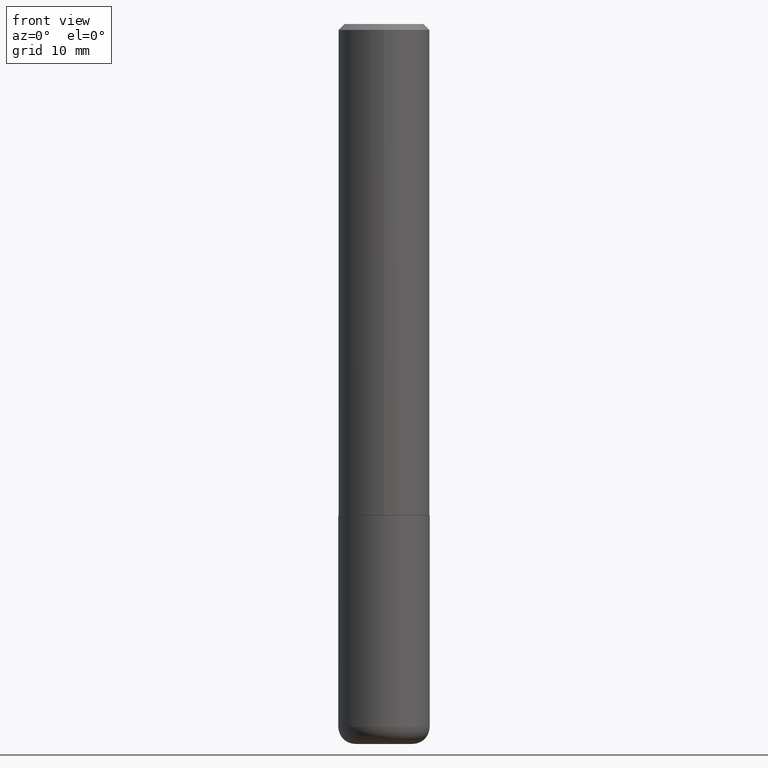
[diagram: clean part render]
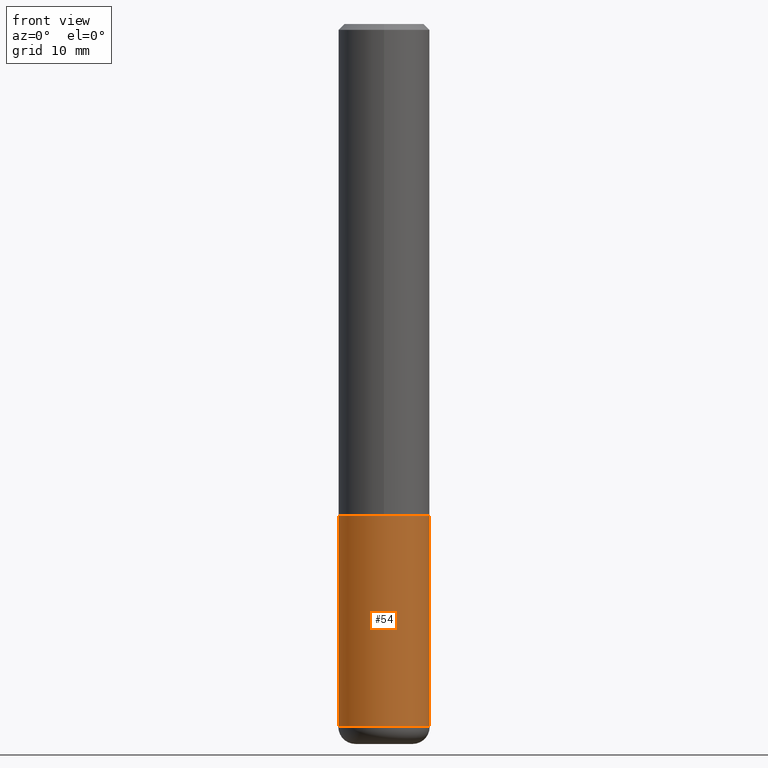
[diagram: same view with one face highlighted and labeled with its STEP entity id]
A machine part, front view. The second image highlights one B-rep face of the part: STEP entity #54.
In plain terms, the highlighted cylindrical surface (partial cylindrical patch) has radius 4.0005 mm, axis along (-0, 0, 1).
Its self-contained STEP definition (entity closure, byte-faithful):
#17 = DIRECTION ( 'NONE',  ( 1.000000000000000000, -6.982962677686267499E-15, 0.000000000000000000 ) ) ;
#25 = VERTEX_POINT ( 'NONE', #342 ) ;
#26 = VERTEX_POINT ( 'NONE', #352 ) ;
#30 = AXIS2_PLACEMENT_3D ( 'NONE', #288, #390, #386 ) ;
#49 = EDGE_CURVE ( 'NONE', #169, #25, #275, .T. ) ;
#52 = ORIENTED_EDGE ( 'NONE', *, *, #345, .T. ) ;
#54 = ADVANCED_FACE ( 'NONE', ( #100 ), #73, .T. ) ;
#73 = CYLINDRICAL_SURFACE ( 'NONE', #173, 0.1575000000000000289 ) ;
#75 = VECTOR ( 'NONE', #300, 39.37007874015748143 ) ;
#87 = LINE ( 'NONE', #276, #75 ) ;
#100 = FACE_OUTER_BOUND ( 'NONE', #114, .T. ) ;
#114 = EDGE_LOOP ( 'NONE', ( #201, #52, #189, #347 ) ) ;
#122 = AXIS2_PLACEMENT_3D ( 'NONE', #407, #304, #17 ) ;
#129 = DIRECTION ( 'NONE',  ( 1.000000000000000000, -6.982962677686267499E-15, 4.876176775795935232E-29 ) ) ;
#149 = VERTEX_POINT ( 'NONE', #265 ) ;
#160 = DIRECTION ( 'NONE',  ( -2.445468806185136597E-29, 3.491481338843145583E-15, 1.000000000000000000 ) ) ;
#169 = VERTEX_POINT ( 'NONE', #295 ) ;
#173 = AXIS2_PLACEMENT_3D ( 'NONE', #191, #160, #129 ) ;
#189 = ORIENTED_EDGE ( 'NONE', *, *, #313, .T. ) ;
#191 = CARTESIAN_POINT ( 'NONE',  ( 0.000000000000000000, 0.000000000000000000, 0.000000000000000000 ) ) ;
#201 = ORIENTED_EDGE ( 'NONE', *, *, #212, .F. ) ;
#212 = EDGE_CURVE ( 'NONE', #149, #169, #292, .T. ) ;
#233 = DIRECTION ( 'NONE',  ( -2.445468806185136877E-29, 3.491481338843145188E-15, 1.000000000000000000 ) ) ;
#261 = CARTESIAN_POINT ( 'NONE',  ( -0.1575000000000000289, 1.119104808822157998E-15, -7.747322767151478386E-30 ) ) ;
#265 = CARTESIAN_POINT ( 'NONE',  ( -0.1575000000000000011, -7.334469808784867333E-15, -2.421200000000000241 ) ) ;
#275 = CIRCLE ( 'NONE', #30, 0.1575000000000000011 ) ;
#276 = CARTESIAN_POINT ( 'NONE',  ( 0.1575000000000000289, -1.099816621735587283E-15, 7.679978421878599434E-30 ) ) ;
#288 = CARTESIAN_POINT ( 'NONE',  ( 4.139934141990818918E-29, -5.910728758527562653E-15, -1.692900000000000293 ) ) ;
#292 = LINE ( 'NONE', #261, #326 ) ;
#295 = CARTESIAN_POINT ( 'NONE',  ( -0.1575000000000000011, -6.063046879245136191E-15, -1.692900000000000293 ) ) ;
#298 = CIRCLE ( 'NONE', #122, 0.1575000000000000289 ) ;
#300 = DIRECTION ( 'NONE',  ( -2.445468806185136877E-29, 3.491481338843145188E-15, 1.000000000000000000 ) ) ;
#304 = DIRECTION ( 'NONE',  ( -2.445468806185136597E-29, 3.491481338843145583E-15, 1.000000000000000000 ) ) ;
#313 = EDGE_CURVE ( 'NONE', #26, #25, #87, .T. ) ;
#326 = VECTOR ( 'NONE', #233, 39.37007874015748143 ) ;
#342 = CARTESIAN_POINT ( 'NONE',  ( 0.1575000000000000011, -7.010545380263150133E-15, -1.692900000000000293 ) ) ;
#345 = EDGE_CURVE ( 'NONE', #149, #26, #298, .T. ) ;
#347 = ORIENTED_EDGE ( 'NONE', *, *, #49, .F. ) ;
#352 = CARTESIAN_POINT ( 'NONE',  ( 0.1575000000000000011, -9.553391239342613205E-15, -2.421200000000000241 ) ) ;
#386 = DIRECTION ( 'NONE',  ( 1.000000000000000000, -6.982962677686268288E-15, 0.000000000000000000 ) ) ;
#390 = DIRECTION ( 'NONE',  ( -2.445468806185136597E-29, 3.491481338843145583E-15, 1.000000000000000000 ) ) ;
#407 = CARTESIAN_POINT ( 'NONE',  ( 5.920969073535453422E-29, -8.453574617607024936E-15, -2.421200000000000241 ) ) ;